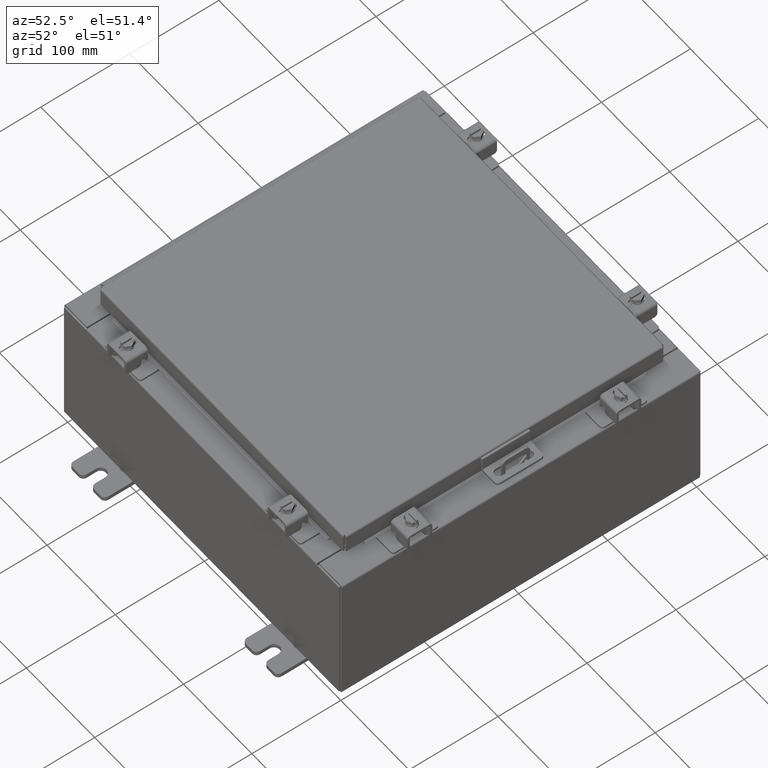
[diagram: clean part render]
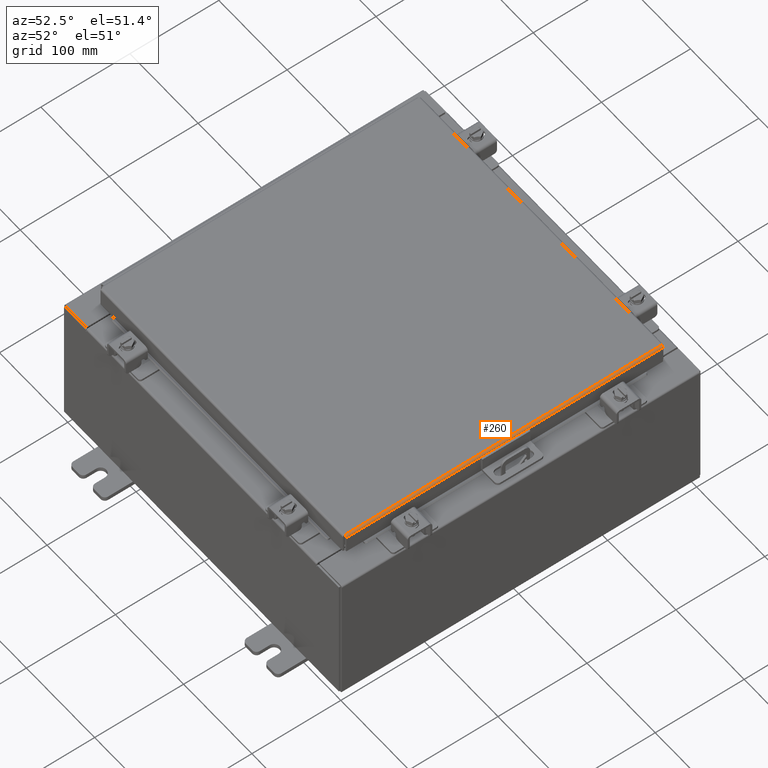
[diagram: same view with one face highlighted and labeled with its STEP entity id]
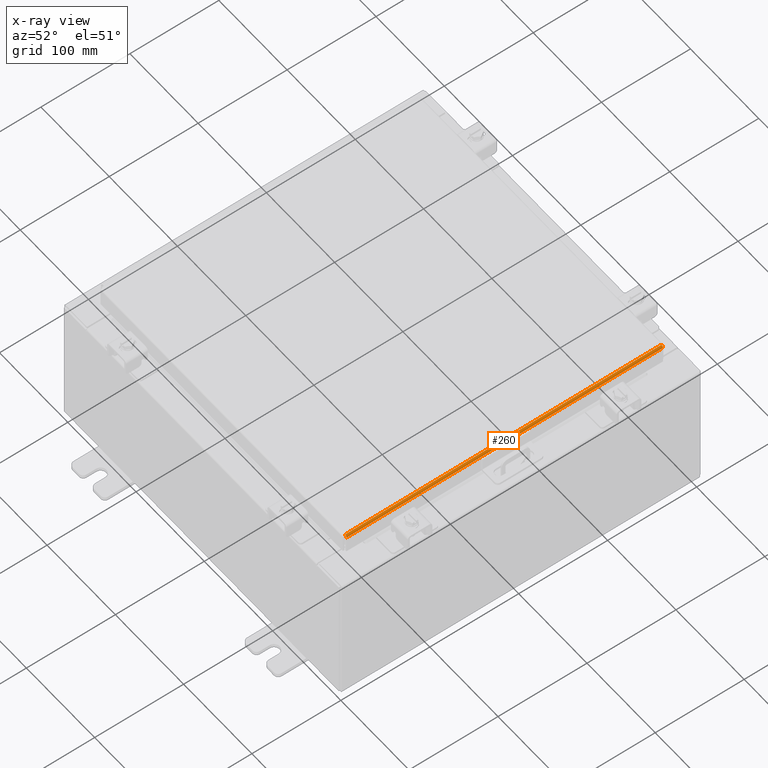
[diagram: x-ray of the same camera — body ghosted, the highlighted face saturated]
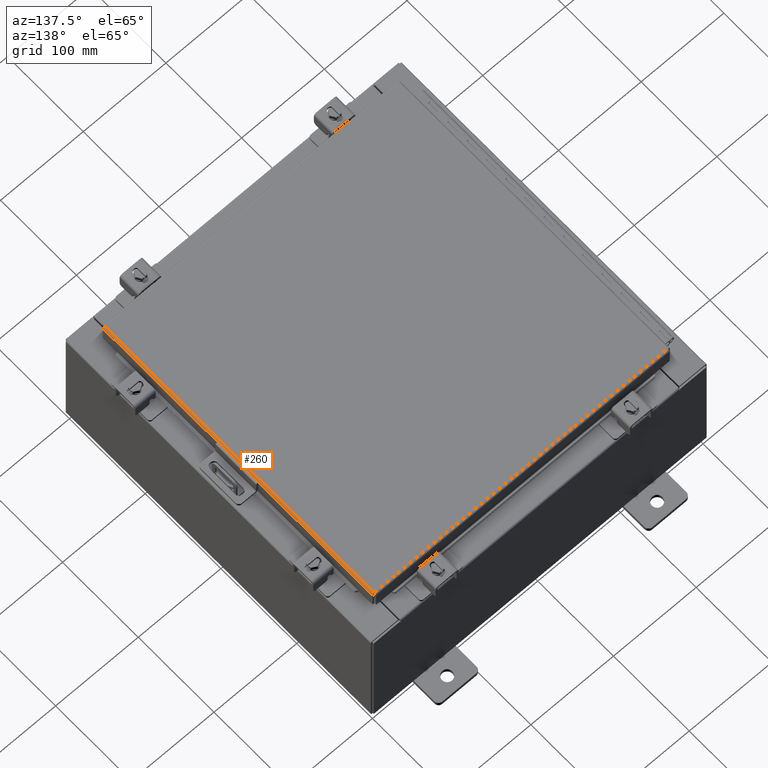
[diagram: same view with one face highlighted and labeled with its STEP entity id]
A machine part, auxiliary view. The second image highlights one B-rep face of the part: STEP entity #260.
The next image is the same camera in x-ray: the body ghosted, the highlighted face saturated — about 0% of this face is hidden behind the body in this view.
A second angle (auxiliary view) of the same face is appended — the face is thin or edge-on in the first view.
In plain terms, the highlighted cylindrical surface (edge-blend (fillet) strip) has radius 2.2276 mm, axis along (-0, -1, -0).
Its self-contained STEP definition (entity closure, byte-faithful):
#260 = ADVANCED_FACE ( 'NONE', ( #13906 ), #18647, .T. ) ;
#328 = CARTESIAN_POINT ( 'NONE',  ( 7.077999999999999400, 7.005157864376269700, -0.08770000000000007000 ) ) ;
#503 = CARTESIAN_POINT ( 'NONE',  ( 7.001779903154991700, -7.006204822031357100, -2.038214714022946300E-016 ) ) ;
#1034 = CARTESIAN_POINT ( 'NONE',  ( 6.990299999999998600, 7.006300000000000400, -2.048885995248197400E-016 ) ) ;
#1278 = ORIENTED_EDGE ( 'NONE', *, *, #12144, .F. ) ;
#2152 = CARTESIAN_POINT ( 'NONE',  ( 7.060430782078318800, 7.005633754219490000, -0.03380425265820009900 ) ) ;
#3330 = EDGE_CURVE ( 'NONE', #4922, #10382, #12211, .T. ) ;
#3985 = EDGE_CURVE ( 'NONE', #10382, #19902, #23344, .T. ) ;
#4534 = CARTESIAN_POINT ( 'NONE',  ( 6.990299999999998600, 7.006300000000000400, -2.048885995248197400E-016 ) ) ;
#4640 = CARTESIAN_POINT ( 'NONE',  ( 7.075717403743811800, 7.005348220313559100, -0.06474471054169121700 ) ) ;
#4922 = VERTEX_POINT ( 'NONE', #19263 ) ;
#5340 = CARTESIAN_POINT ( 'NONE',  ( 7.077999999999999400, 0.0000000000000000000, -0.08770000000000007000 ) ) ;
#6097 = AXIS2_PLACEMENT_3D ( 'NONE', #25609, #16741, #17295 ) ;
#6449 = LINE ( 'NONE', #5340, #16459 ) ;
#7369 = DIRECTION ( 'NONE',  ( 0.0000000000000000000, -1.000000000000000000, 0.0000000000000000000 ) ) ;
#8562 = CARTESIAN_POINT ( 'NONE',  ( 7.066931066258665500, -7.005538576250844900, -0.04353261542147222900 ) ) ;
#9235 = CARTESIAN_POINT ( 'NONE',  ( 7.066931066258666400, 7.005538576250847500, -0.04353261542147223600 ) ) ;
#9407 = CARTESIAN_POINT ( 'NONE',  ( 7.013255289458309800, 7.006109644062711100, -0.002282596256188923400 ) ) ;
#10242 = CARTESIAN_POINT ( 'NONE',  ( 7.034467384578526600, 7.005919288125420900, -0.01106893374133176100 ) ) ;
#10299 = ORIENTED_EDGE ( 'NONE', *, *, #21917, .F. ) ;
#10382 = VERTEX_POINT ( 'NONE', #1034 ) ;
#10480 = CARTESIAN_POINT ( 'NONE',  ( 7.078000000000000300, -7.005253042344914900, -0.07622009684500735700 ) ) ;
#10571 = CARTESIAN_POINT ( 'NONE',  ( 7.044195747341800200, -7.005824110156780200, -0.01756921792167976500 ) ) ;
#10625 = ORIENTED_EDGE ( 'NONE', *, *, #3985, .F. ) ;
#11071 = EDGE_LOOP ( 'NONE', ( #13764, #10299, #1278, #10625 ) ) ;
#12144 = EDGE_CURVE ( 'NONE', #19902, #18849, #6449, .T. ) ;
#12211 = LINE ( 'NONE', #18792, #22267 ) ;
#12579 = CARTESIAN_POINT ( 'NONE',  ( 7.013255289458310700, -7.006109644062711100, -0.002282596256188923000 ) ) ;
#13764 = ORIENTED_EDGE ( 'NONE', *, *, #3330, .F. ) ;
#13906 = FACE_OUTER_BOUND ( 'NONE', #11071, .T. ) ;
#14569 = CARTESIAN_POINT ( 'NONE',  ( 6.990299999999998600, -7.006300000000000400, -2.048885995248197400E-016 ) ) ;
#14593 = CARTESIAN_POINT ( 'NONE',  ( 7.077999999999999400, 7.005157864376269700, -0.08770000000000007000 ) ) ;
#14717 = CARTESIAN_POINT ( 'NONE',  ( 7.001779903154992500, 7.006204822031357100, -2.037881236484656600E-016 ) ) ;
#16459 = VECTOR ( 'NONE', #7369, 39.37007874015748100 ) ;
#16741 = DIRECTION ( 'NONE',  ( -0.0000000000000000000, -1.000000000000000000, -0.0000000000000000000 ) ) ;
#17295 = DIRECTION ( 'NONE',  ( 1.000000000000000000, 0.0000000000000000000, 2.725618009642215600E-015 ) ) ;
#18260 = DIRECTION ( 'NONE',  ( 0.0000000000000000000, 1.000000000000000000, 0.0000000000000000000 ) ) ;
#18647 = CYLINDRICAL_SURFACE ( 'NONE', #6097, 0.08770000000000026400 ) ;
#18792 = CARTESIAN_POINT ( 'NONE',  ( 6.990299999999998600, -7.006300000000000400, -2.048885995248197400E-016 ) ) ;
#18849 = VERTEX_POINT ( 'NONE', #20326 ) ;
#19017 = CARTESIAN_POINT ( 'NONE',  ( 7.044195747341800200, 7.005824110156779300, -0.01756921792167976500 ) ) ;
#19263 = CARTESIAN_POINT ( 'NONE',  ( 6.990299999999998600, -7.006300000000000400, -2.048885995248197400E-016 ) ) ;
#19547 = CARTESIAN_POINT ( 'NONE',  ( 7.077999999999999400, 7.005253042344914900, -0.07622009684500738500 ) ) ;
#19902 = VERTEX_POINT ( 'NONE', #328 ) ;
#20326 = CARTESIAN_POINT ( 'NONE',  ( 7.077999999999999400, -7.005157864376269700, -0.08770000000000007000 ) ) ;
#20549 = CARTESIAN_POINT ( 'NONE',  ( 7.075717403743810000, -7.005348220313559100, -0.06474471054169121700 ) ) ;
#21039 = B_SPLINE_CURVE_WITH_KNOTS ( 'NONE', 3,
 ( #24566, #10480, #20549, #8562, #22609, #10571, #24645, #12579, #503, #14569 ),
 .UNSPECIFIED., .F., .F.,
 ( 4, 2, 2, 2, 4 ),
 ( 0.0000000000000000000, 0.2500000000000000000, 0.5000000000000000000, 0.7500000000000000000, 1.000000000000000000 ),
 .UNSPECIFIED. ) ;
#21917 = EDGE_CURVE ( 'NONE', #18849, #4922, #21039, .T. ) ;
#22267 = VECTOR ( 'NONE', #18260, 39.37007874015748100 ) ;
#22609 = CARTESIAN_POINT ( 'NONE',  ( 7.060430782078321400, -7.005633754219491700, -0.03380425265820009200 ) ) ;
#23344 = B_SPLINE_CURVE_WITH_KNOTS ( 'NONE', 3,
 ( #4534, #14717, #9407, #10242, #19017, #2152, #9235, #4640, #19547, #14593 ),
 .UNSPECIFIED., .F., .F.,
 ( 4, 2, 2, 2, 4 ),
 ( 0.0000000000000000000, 0.2500000000000000000, 0.5000000000000000000, 0.7500000000000000000, 1.000000000000000000 ),
 .UNSPECIFIED. ) ;
#24566 = CARTESIAN_POINT ( 'NONE',  ( 7.077999999999999400, -7.005157864376269700, -0.08770000000000007000 ) ) ;
#24645 = CARTESIAN_POINT ( 'NONE',  ( 7.034467384578528400, -7.005919288125422600, -0.01106893374133176100 ) ) ;
#25609 = CARTESIAN_POINT ( 'NONE',  ( 6.990299999999998600, -7.006300000000000400, -0.08770000000000030500 ) ) ;